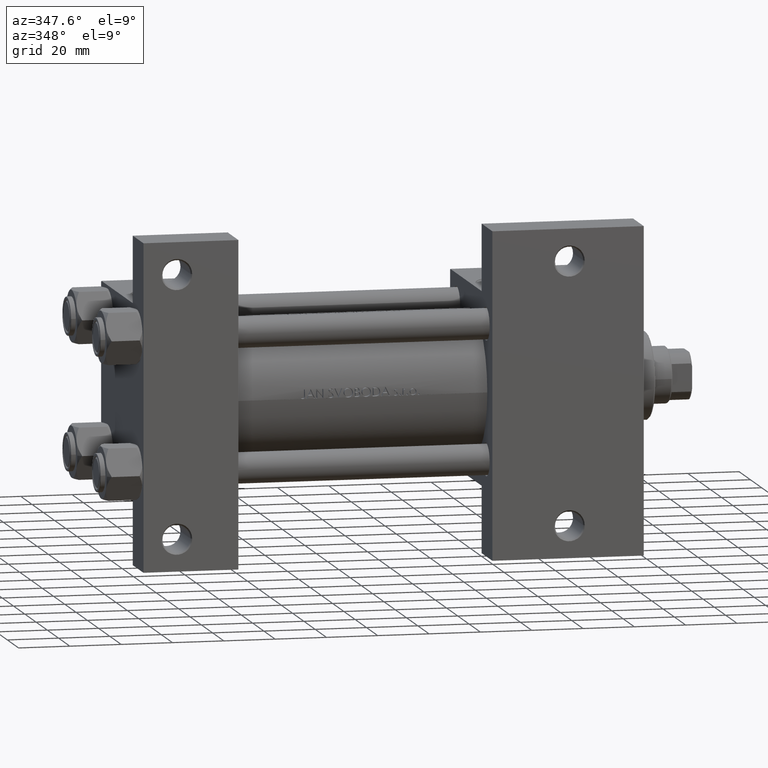
[diagram: clean part render]
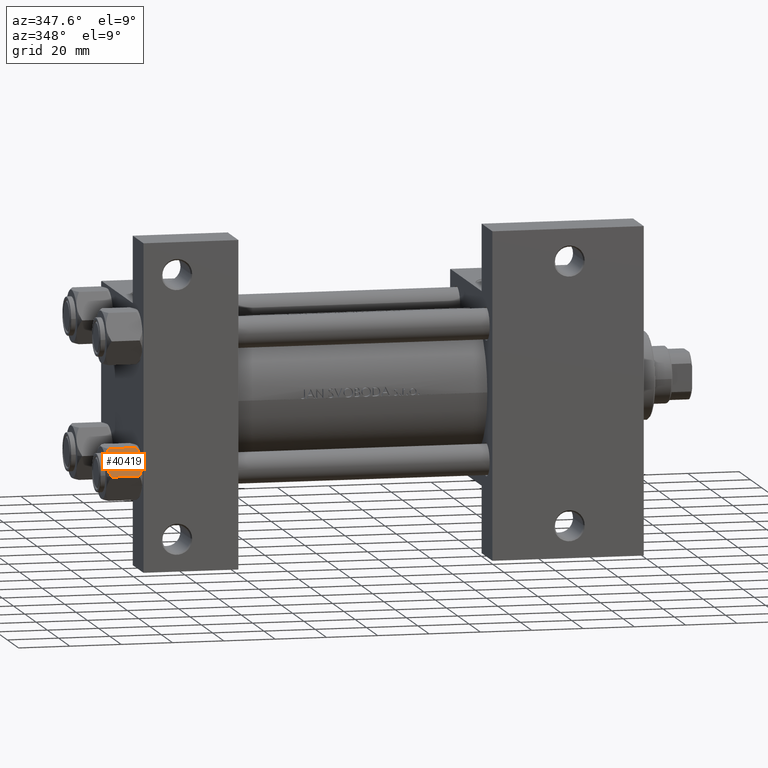
[diagram: same view with one face highlighted and labeled with its STEP entity id]
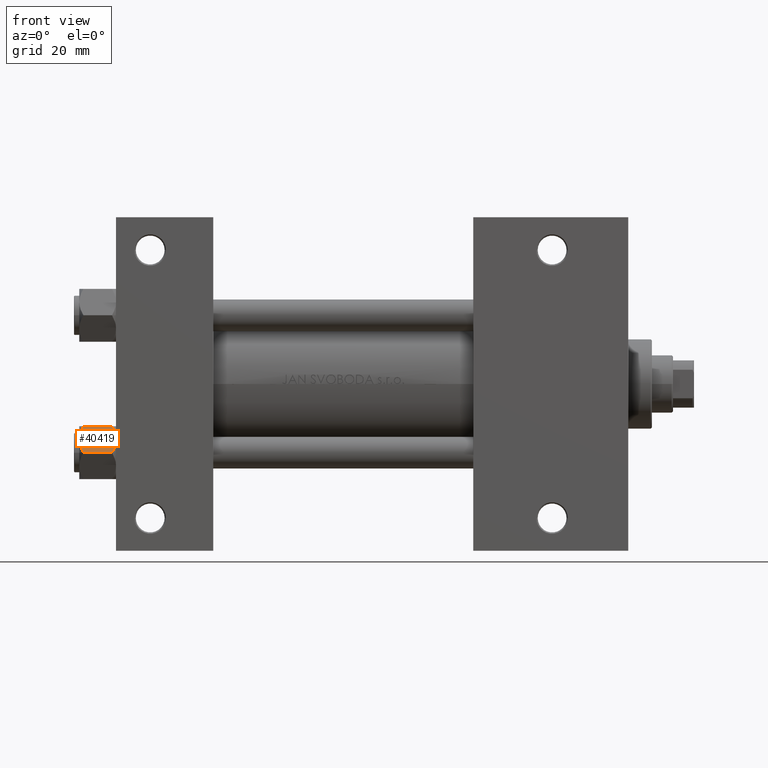
[diagram: same view with one face highlighted and labeled with its STEP entity id]
A machine part, auxiliary view. The second image highlights one B-rep face of the part: STEP entity #40419.
A second angle (front view) of the same face is appended — the face is thin or edge-on in the first view.
In plain terms, the highlighted planar face has unit normal (-0, 0.866, -0.5).
Its self-contained STEP definition (entity closure, byte-faithful):
#201 = CARTESIAN_POINT ( 'NONE',  ( 9.227666995912102266, 4.143642311704122783, -0.03994118060690848154 ) ) ;
#825 = CARTESIAN_POINT ( 'NONE',  ( 9.220295946303432189, 4.156409344131451356, -14.00000000000000178 ) ) ;
#1005 = CARTESIAN_POINT ( 'NONE',  ( 8.209704053696574633, 5.906805847843726198, 1.265467223197924312E-15 ) ) ;
#2573 = DIRECTION ( 'NONE',  ( -0.000000000000000000, -0.000000000000000000, 1.000000000000000000 ) ) ;
#2747 = ORIENTED_EDGE ( 'NONE', *, *, #22574, .T. ) ;
#4073 = CARTESIAN_POINT ( 'NONE',  ( 10.69662495661650503, 1.599332489581332339, -13.28854452935654962 ) ) ;
#4285 = VECTOR ( 'NONE', #2573, 1000.000000000000000 ) ;
#4491 = CARTESIAN_POINT ( 'NONE',  ( 5.810000000000000497, 10.06321519197518022, -1.556784808024817890 ) ) ;
#7673 = CARTESIAN_POINT ( 'NONE',  ( 9.974696630283190757, 2.849749030213790224, -0.3002673809867378307 ) ) ;
#7923 = CARTESIAN_POINT ( 'NONE',  ( 8.715000000000003411, 5.031607595987588333, 0.000000000000000000 ) ) ;
#8287 = VERTEX_POINT ( 'NONE', #37834 ) ;
#8786 = CARTESIAN_POINT ( 'NONE',  ( 11.62000000000000099, -1.813166800014576593E-15, -14.00000000000000000 ) ) ;
#9873 = EDGE_CURVE ( 'NONE', #8287, #18726, #16740, .T. ) ;
#10010 = DIRECTION ( 'NONE',  ( -0.8660254037844387076, -0.4999999999999998335, 0.000000000000000000 ) ) ;
#10048 = EDGE_CURVE ( 'NONE', #29472, #43977, #40432, .T. ) ;
#10981 = CARTESIAN_POINT ( 'NONE',  ( 6.731401448974989599, 8.467301068182914392, -13.28585617404753272 ) ) ;
#11226 = CARTESIAN_POINT ( 'NONE',  ( 8.460569896449619876, 5.472293462311864864, -14.00000000000000355 ) ) ;
#12037 = CARTESIAN_POINT ( 'NONE',  ( 11.16498164529022574, 0.7881149087337280257, -12.89823354668504862 ) ) ;
#12286 = CARTESIAN_POINT ( 'NONE',  ( 9.716999946243698005, 3.296092779912227044, -13.84547602999601779 ) ) ;
#12946 = CARTESIAN_POINT ( 'NONE',  ( 6.733375043383499126, 8.463882702393842550, -0.7114554706434507159 ) ) ;
#14277 = LINE ( 'NONE', #21474, #4285 ) ;
#14510 = CARTESIAN_POINT ( 'NONE',  ( 5.810000000000000497, 10.06321519197518022, -12.44321519197518278 ) ) ;
#14954 = CARTESIAN_POINT ( 'NONE',  ( 7.455303369716809847, 7.213466161761385997, -13.69973261901326289 ) ) ;
#16740 = LINE ( 'NONE', #8786, #30102 ) ;
#16989 = FACE_OUTER_BOUND ( 'NONE', #18671, .T. ) ;
#17490 = PLANE ( 'NONE',  #44361 ) ;
#18671 = EDGE_LOOP ( 'NONE', ( #47958, #2747, #37719, #33911, #41388, #32263 ) ) ;
#18726 = VERTEX_POINT ( 'NONE', #48959 ) ;
#21382 = EDGE_CURVE ( 'NONE', #41851, #8287, #36697, .T. ) ;
#21474 = CARTESIAN_POINT ( 'NONE',  ( 5.810000000000000497, 10.06321519197518022, -14.00000000000000000 ) ) ;
#22574 = EDGE_CURVE ( 'NONE', #35517, #43977, #14277, .T. ) ;
#22855 = CARTESIAN_POINT ( 'NONE',  ( 9.729165168613654657, 3.275021996682081493, -0.1903979688073423326 ) ) ;
#23951 = DIRECTION ( 'NONE',  ( -0.000000000000000000, -0.000000000000000000, 1.000000000000000000 ) ) ;
#24946 = DIRECTION ( 'NONE',  ( 0.4999999999999998335, -0.8660254037844387076, 0.000000000000000000 ) ) ;
#24951 = CARTESIAN_POINT ( 'NONE',  ( 8.715000000000003411, 5.031607595987588333, 0.000000000000000000 ) ) ;
#26162 = CARTESIAN_POINT ( 'NONE',  ( 8.715000000000003411, 5.031607595987588333, -14.00000000000000000 ) ) ;
#29472 = VERTEX_POINT ( 'NONE', #24951 ) ;
#30102 = VECTOR ( 'NONE', #23951, 1000.000000000000000 ) ;
#31824 = EDGE_CURVE ( 'NONE', #35517, #41851, #40183, .T. ) ;
#32179 = CARTESIAN_POINT ( 'NONE',  ( 5.810000000000000497, 10.06321519197518022, -14.00000000000000000 ) ) ;
#32263 = ORIENTED_EDGE ( 'NONE', *, *, #21382, .F. ) ;
#32359 = CARTESIAN_POINT ( 'NONE',  ( 8.715000000000003411, 5.031607595987588333, -14.00000000000000000 ) ) ;
#33390 = CARTESIAN_POINT ( 'NONE',  ( 8.202333004087902779, 5.919572880271052995, -13.96005881939309212 ) ) ;
#33911 = ORIENTED_EDGE ( 'NONE', *, *, #46991, .F. ) ;
#34557 = B_SPLINE_CURVE_WITH_KNOTS ( 'NONE', 3,
 ( #45530, #41782, #46018, #7673, #22855, #201, #45771, #7923 ),
 .UNSPECIFIED., .F., .F.,
 ( 4, 2, 2, 4 ),
 ( 2.544312114904956385E-07, 0.003011550106433539924, 0.004517197944044563582, 0.006022845781655587240 ),
 .UNSPECIFIED. ) ;
#34856 = CARTESIAN_POINT ( 'NONE',  ( 6.265018354709775750, 9.275100283241453525, -1.101766453314955152 ) ) ;
#35348 = CARTESIAN_POINT ( 'NONE',  ( 7.713000053756308816, 6.767122412062953174, -0.1545239700039844066 ) ) ;
#35517 = VERTEX_POINT ( 'NONE', #14510 ) ;
#36697 = B_SPLINE_CURVE_WITH_KNOTS ( 'NONE', 3,
 ( #41674, #825, #12286, #4073, #12037, #42651 ),
 .UNSPECIFIED., .F., .F.,
 ( 4, 2, 4 ),
 ( 0.006022845781655591577, 0.009013049135303638493, 0.01200325248895168714 ),
 .UNSPECIFIED. ) ;
#37364 = CARTESIAN_POINT ( 'NONE',  ( 5.810000000000000497, 10.06321519197518022, -12.44321519197518278 ) ) ;
#37643 = CARTESIAN_POINT ( 'NONE',  ( 5.810000000000000497, 10.06321519197518022, -1.556784808024817890 ) ) ;
#37719 = ORIENTED_EDGE ( 'NONE', *, *, #10048, .F. ) ;
#37834 = CARTESIAN_POINT ( 'NONE',  ( 11.62000000000000099, -1.795242522838921761E-15, -12.44321519197518455 ) ) ;
#40183 = B_SPLINE_CURVE_WITH_KNOTS ( 'NONE', 3,
 ( #37364, #45091, #10981, #14954, #45339, #33390, #11226, #26162 ),
 .UNSPECIFIED., .F., .F.,
 ( 4, 2, 2, 4 ),
 ( 2.544312114902182352E-07, 0.003011550106433540791, 0.004517197944044566184, 0.006022845781655591577 ),
 .UNSPECIFIED. ) ;
#40419 = ADVANCED_FACE ( 'NONE', ( #16989 ), #17490, .F. ) ;
#40432 = B_SPLINE_CURVE_WITH_KNOTS ( 'NONE', 3,
 ( #46336, #1005, #35348, #12946, #34856, #4491 ),
 .UNSPECIFIED., .F., .F.,
 ( 4, 2, 4 ),
 ( 0.006022845781655587240, 0.009013049135303635023, 0.01200325248895168367 ),
 .UNSPECIFIED. ) ;
#41388 = ORIENTED_EDGE ( 'NONE', *, *, #9873, .F. ) ;
#41674 = CARTESIAN_POINT ( 'NONE',  ( 8.715000000000003411, 5.031607595987588333, -14.00000000000000000 ) ) ;
#41782 = CARTESIAN_POINT ( 'NONE',  ( 11.16445427487472131, 0.7890283410877951820, -1.101239082899533317 ) ) ;
#41851 = VERTEX_POINT ( 'NONE', #32359 ) ;
#42651 = CARTESIAN_POINT ( 'NONE',  ( 11.62000000000000099, -1.795242522838921761E-15, -12.44321519197518455 ) ) ;
#43977 = VERTEX_POINT ( 'NONE', #37643 ) ;
#44361 = AXIS2_PLACEMENT_3D ( 'NONE', #32179, #10010, #24946 ) ;
#45091 = CARTESIAN_POINT ( 'NONE',  ( 6.265545725125283738, 9.274186850887380373, -12.89876091710046602 ) ) ;
#45339 = CARTESIAN_POINT ( 'NONE',  ( 7.700834831386346835, 6.788193195293095172, -13.80960203119265728 ) ) ;
#45530 = CARTESIAN_POINT ( 'NONE',  ( 11.62000000000000099, -1.607967606633101042E-15, -1.556784808024815669 ) ) ;
#45771 = CARTESIAN_POINT ( 'NONE',  ( 8.969430103550381617, 4.590921729663312689, 1.314595134138673732E-15 ) ) ;
#46018 = CARTESIAN_POINT ( 'NONE',  ( 10.69859855102501278, 1.595914123792261829, -0.7141438259524660603 ) ) ;
#46336 = CARTESIAN_POINT ( 'NONE',  ( 8.715000000000003411, 5.031607595987588333, 0.000000000000000000 ) ) ;
#46991 = EDGE_CURVE ( 'NONE', #18726, #29472, #34557, .T. ) ;
#47958 = ORIENTED_EDGE ( 'NONE', *, *, #31824, .F. ) ;
#48959 = CARTESIAN_POINT ( 'NONE',  ( 11.62000000000000099, -1.607967606633101042E-15, -1.556784808024815669 ) ) ;